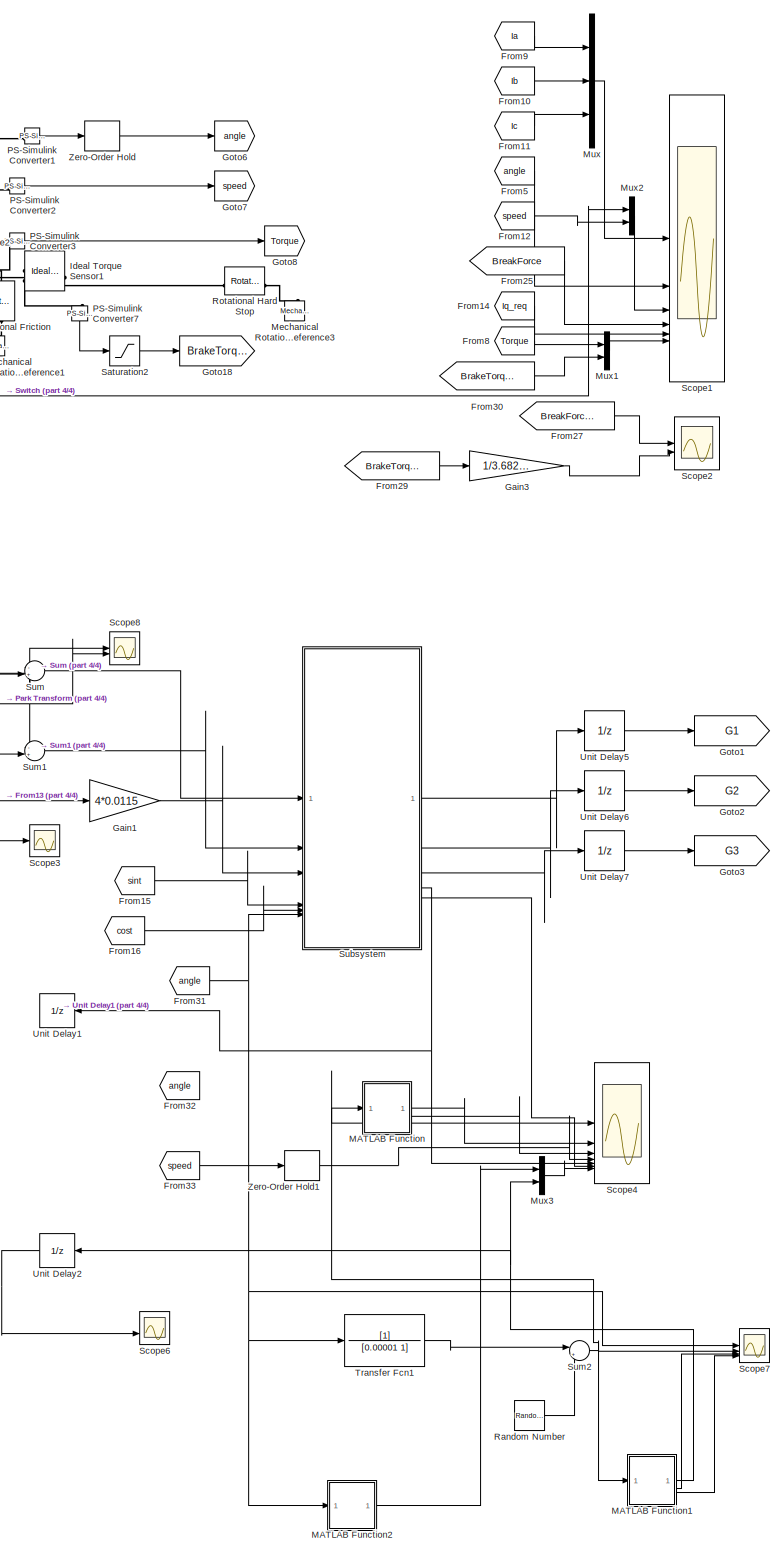
[diagram: root canvas - part 1/4, right side, full height]
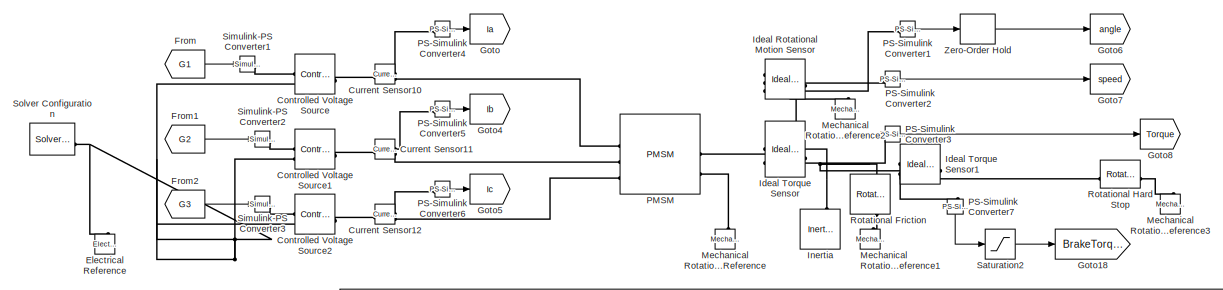
[diagram: root canvas - part 2/4, top center region]
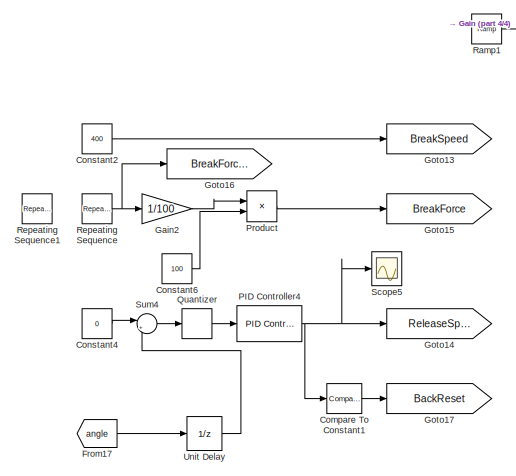
[diagram: root canvas - part 3/4, middle left region]
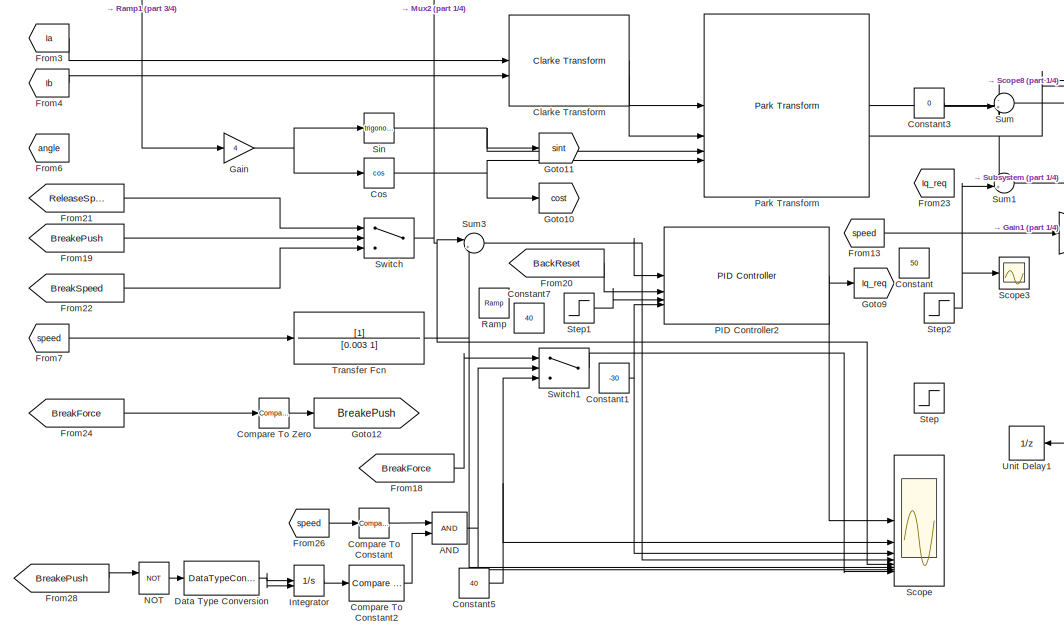
[diagram: root canvas - part 4/4, central region]
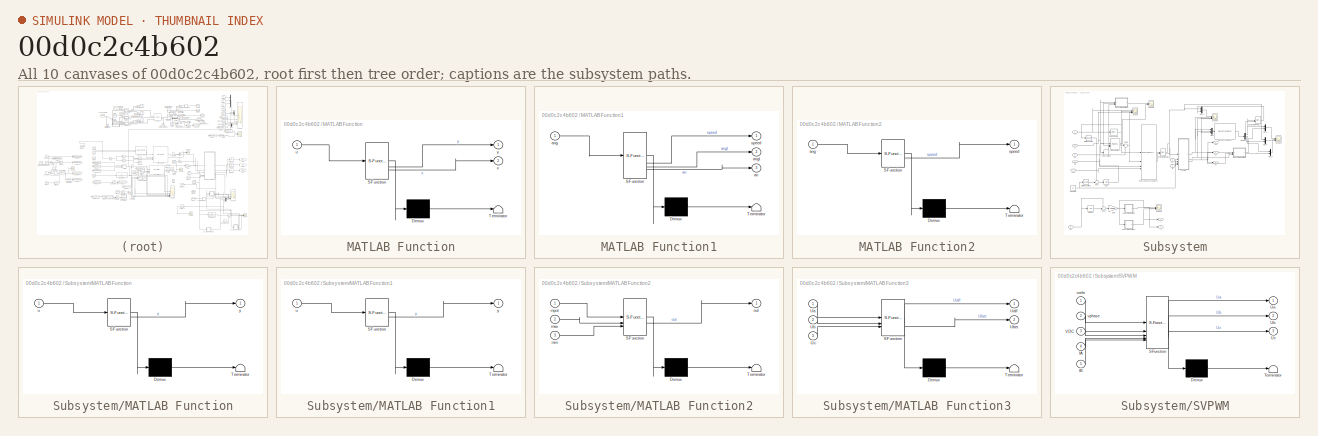
[diagram: thumbnail index - all 10 canvases of the model, root first then tree order]
MODEL slx_00d0c2c4b602
KIND model
CONFIG AbsTol = auto
CONFIG EnableMultiTasking = off
CONFIG FixedStep = auto
CONFIG MaxStep = 1e-6
CONFIG MinStep = auto
CONFIG RelTol = 1e-3
CONFIG SampleTimeConstraint = Unconstrained
CONFIG SolverName = daessc
CONFIG StartTime = 0.0
CONFIG StopTime = 3.3
BLOCK [Logic] AND
  AllPortsSameDT = off
  IconShape = distinctive
  OutDataTypeStr = boolean
BLOCK [Reference] Clarke Transform  REF=mcbcontrolslib/Clarke Transform
  LibrarySourceBlock = mcbhdllib/Controls/Math Transforms/Clarke Transform
  SourceBlock = mcbcontrolslib/Clarke Transform
  SourceType = Clarke Transform
BLOCK [Reference] Compare To Constant  REF=simulink/Logic and Bit
Operations/Compare
To Constant
  SourceBlock = simulink/Logic and Bit\nOperations/Compare\nTo Constant
  SourceType = Compare To Constant
BLOCK [Reference] Compare To Constant1  REF=simulink/Logic and Bit
Operations/Compare
To Constant
  SourceBlock = simulink/Logic and Bit\nOperations/Compare\nTo Constant
  SourceType = Compare To Constant
BLOCK [Reference] Compare To Constant2  REF=simulink/Logic and Bit
Operations/Compare
To Constant
  SourceBlock = simulink/Logic and Bit\nOperations/Compare\nTo Constant
  SourceType = Compare To Constant
BLOCK [Reference] Compare To Zero  REF=simulink/Logic and Bit
Operations/Compare
To Zero
  SourceBlock = simulink/Logic and Bit\nOperations/Compare\nTo Zero
  SourceType = Compare To Zero
BLOCK [Constant] Constant
  Value = 50
BLOCK [Constant] Constant1
  Value = -30
BLOCK [Constant] Constant2
  Value = 400
BLOCK [Constant] Constant3
  Value = 0
BLOCK [Constant] Constant4
  Value = 0
BLOCK [Constant] Constant5
  Value = 40
BLOCK [Constant] Constant6
  Value = 100
BLOCK [Constant] Constant7
  Value = 40
BLOCK [Reference] Controlled Voltage Source  REF=fl_lib/Electrical/Electrical Sources/Controlled Voltage
Source
  SourceBlock = fl_lib/Electrical/Electrical Sources/Controlled Voltage\nSource
  SourceType = Controlled Voltage\nSource
BLOCK [Reference] Controlled Voltage Source1  REF=fl_lib/Electrical/Electrical Sources/Controlled Voltage
Source
  SourceBlock = fl_lib/Electrical/Electrical Sources/Controlled Voltage\nSource
  SourceType = Controlled Voltage\nSource
BLOCK [Reference] Controlled Voltage Source2  REF=fl_lib/Electrical/Electrical Sources/Controlled Voltage
Source
  SourceBlock = fl_lib/Electrical/Electrical Sources/Controlled Voltage\nSource
  SourceType = Controlled Voltage\nSource
BLOCK [Trigonometry] Cos
  Operator = cos
BLOCK [Reference] Current Sensor10  REF=fl_lib/Electrical/Electrical Sensors/Current Sensor
  LibrarySourceBlock = ee_lib/Sensors &\nTransducers/Current Sensor
  SourceBlock = fl_lib/Electrical/Electrical Sensors/Current Sensor
  SourceType = Current Sensor
BLOCK [Reference] Current Sensor11  REF=fl_lib/Electrical/Electrical Sensors/Current Sensor
  LibrarySourceBlock = ee_lib/Sensors &\nTransducers/Current Sensor
  SourceBlock = fl_lib/Electrical/Electrical Sensors/Current Sensor
  SourceType = Current Sensor
BLOCK [Reference] Current Sensor12  REF=fl_lib/Electrical/Electrical Sensors/Current Sensor
  LibrarySourceBlock = ee_lib/Sensors &\nTransducers/Current Sensor
  SourceBlock = fl_lib/Electrical/Electrical Sensors/Current Sensor
  SourceType = Current Sensor
BLOCK [DataTypeConversion] Data Type Conversion
  OutDataTypeStr = double
  RndMeth = Floor
  SaturateOnIntegerOverflow = off
BLOCK [Reference] Electrical Reference  REF=fl_lib/Electrical/Electrical Elements/Electrical Reference
  LibrarySourceBlock = ee_lib/Connectors &\nReferences/Electrical Reference
  NameLocation = right
  SourceBlock = fl_lib/Electrical/Electrical Elements/Electrical Reference
  SourceType = Electrical Reference
BLOCK [From] From
  GotoTag = G1
BLOCK [From] From1
  GotoTag = G2
BLOCK [From] From10
  GotoTag = Ib
BLOCK [From] From11
  GotoTag = Ic
BLOCK [From] From12
  GotoTag = speed
BLOCK [From] From13
  GotoTag = speed
BLOCK [From] From14
  GotoTag = Iq_req
BLOCK [From] From15
  GotoTag = sint
BLOCK [From] From16
  GotoTag = cost
BLOCK [From] From17
  GotoTag = angle
BLOCK [From] From18
  GotoTag = BreakForce
BLOCK [From] From19
  GotoTag = BreakePush
BLOCK [From] From2
  GotoTag = G3
BLOCK [From] From20
  GotoTag = BackReset
BLOCK [From] From21
  GotoTag = ReleaseSpeed
BLOCK [From] From22
  GotoTag = BreakSpeed
BLOCK [From] From23
  GotoTag = Iq_req
BLOCK [From] From24
  GotoTag = BreakForce
BLOCK [From] From25
  GotoTag = BreakForce
BLOCK [From] From26
  GotoTag = speed
BLOCK [From] From27
  GotoTag = BreakForcePc
BLOCK [From] From28
  GotoTag = BreakePush
BLOCK [From] From29
  GotoTag = BrakeTorque
BLOCK [From] From3
  GotoTag = Ia
BLOCK [From] From30
  GotoTag = BrakeTorque
BLOCK [From] From31
  GotoTag = angle
BLOCK [From] From32
  GotoTag = angle
BLOCK [From] From33
  GotoTag = speed
BLOCK [From] From4
  GotoTag = Ib
BLOCK [From] From5
  GotoTag = angle
BLOCK [From] From6
  GotoTag = angle
BLOCK [From] From7
  GotoTag = speed
BLOCK [From] From8
  GotoTag = Torque
BLOCK [From] From9
  GotoTag = Ia
BLOCK [Gain] Gain
  Gain = 4
BLOCK [Gain] Gain1
  Gain = 4*0.0115
  NameLocation = top
BLOCK [Gain] Gain2
  Gain = 1/100
BLOCK [Gain] Gain3
  Gain = 1/3.682*100
BLOCK [Goto] Goto
  GotoTag = Ia
BLOCK [Goto] Goto1
  GotoTag = G1
BLOCK [Goto] Goto10
  GotoTag = cost
BLOCK [Goto] Goto11
  GotoTag = sint
BLOCK [Goto] Goto12
  GotoTag = BreakePush
BLOCK [Goto] Goto13
  GotoTag = BreakSpeed
BLOCK [Goto] Goto14
  GotoTag = ReleaseSpeed
BLOCK [Goto] Goto15
  GotoTag = BreakForce
BLOCK [Goto] Goto16
  GotoTag = BreakForcePc
BLOCK [Goto] Goto17
  GotoTag = BackReset
BLOCK [Goto] Goto18
  GotoTag = BrakeTorque
BLOCK [Goto] Goto2
  GotoTag = G2
BLOCK [Goto] Goto3
  GotoTag = G3
BLOCK [Goto] Goto4
  GotoTag = Ib
BLOCK [Goto] Goto5
  GotoTag = Ic
BLOCK [Goto] Goto6
  GotoTag = angle
BLOCK [Goto] Goto7
  GotoTag = speed
BLOCK [Goto] Goto8
  GotoTag = Torque
BLOCK [Goto] Goto9
  GotoTag = Iq_req
BLOCK [Reference] Ideal Rotational Motion Sensor  REF=fl_lib/Mechanical/Mechanical Sensors/Ideal Rotational
Motion Sensor
  NameLocation = top
  SourceBlock = fl_lib/Mechanical/Mechanical Sensors/Ideal Rotational\nMotion Sensor
  SourceType = Ideal Rotational\nMotion Sensor
BLOCK [Reference] Ideal Torque Sensor  REF=fl_lib/Mechanical/Mechanical Sensors/Ideal Torque Sensor
  NameLocation = top
  SourceBlock = fl_lib/Mechanical/Mechanical Sensors/Ideal Torque Sensor
  SourceType = Ideal Torque Sensor
BLOCK [Reference] Ideal Torque Sensor1  REF=fl_lib/Mechanical/Mechanical Sensors/Ideal Torque Sensor
  NameLocation = top
  SourceBlock = fl_lib/Mechanical/Mechanical Sensors/Ideal Torque Sensor
  SourceType = Ideal Torque Sensor
BLOCK [Reference] Inertia  REF=fl_lib/Mechanical/Rotational Elements/Inertia
  NameLocation = right
  SourceBlock = fl_lib/Mechanical/Rotational Elements/Inertia
  SourceType = Inertia
BLOCK [Integrator] Integrator
  ExternalReset = rising
BLOCK [SubSystem] MATLAB Function
  ErrorFcn = Stateflow.Translate.translate
  PermitHierarchicalResolution = ExplicitOnly
  SFBlockType = MATLAB Function
  SystemSampleTime = 500e-6
  TreatAsAtomicUnit = on
BLOCK [Demux] MATLAB Function/ Demux 
  Outputs = 1
BLOCK [S-Function] MATLAB Function/ SFunction 
  EnableBusSupport = on
  FunctionName = sf_sfun
  PortCounts = [1 3]
  SFcnIsStateOwnerBlock = off
  SFunctionDeploymentMode = off
  Tag = Stateflow S-Function 4
BLOCK [Terminator] MATLAB Function/ Terminator 
BLOCK [Inport] MATLAB Function/u
BLOCK [Outport] MATLAB Function/x
  Port = 2
BLOCK [Outport] MATLAB Function/y
BLOCK [SubSystem] MATLAB Function1
  ErrorFcn = Stateflow.Translate.translate
  PermitHierarchicalResolution = ExplicitOnly
  SFBlockType = MATLAB Function
  SystemSampleTime = 1/100000
  TreatAsAtomicUnit = on
BLOCK [Demux] MATLAB Function1/ Demux 
  Outputs = 1
BLOCK [S-Function] MATLAB Function1/ SFunction 
  EnableBusSupport = on
  FunctionName = sf_sfun
  PortCounts = [1 4]
  SFcnIsStateOwnerBlock = off
  SFunctionDeploymentMode = off
  Tag = Stateflow S-Function 6
BLOCK [Terminator] MATLAB Function1/ Terminator 
BLOCK [Outport] MATLAB Function1/an
  Port = 3
BLOCK [Inport] MATLAB Function1/ang
BLOCK [Outport] MATLAB Function1/angl
  Port = 2
BLOCK [Outport] MATLAB Function1/speed
BLOCK [SubSystem] MATLAB Function2
  ErrorFcn = Stateflow.Translate.translate
  PermitHierarchicalResolution = ExplicitOnly
  SFBlockType = MATLAB Function
  SystemSampleTime = 1/100000
  TreatAsAtomicUnit = on
BLOCK [Demux] MATLAB Function2/ Demux 
  Outputs = 1
BLOCK [S-Function] MATLAB Function2/ SFunction 
  EnableBusSupport = on
  FunctionName = sf_sfun
  PortCounts = [1 2]
  SFcnIsStateOwnerBlock = off
  SFunctionDeploymentMode = off
  Tag = Stateflow S-Function 5
BLOCK [Terminator] MATLAB Function2/ Terminator 
BLOCK [Inport] MATLAB Function2/ang
BLOCK [Outport] MATLAB Function2/speed
BLOCK [Reference] Mechanical Rotational Reference  REF=fl_lib/Mechanical/Rotational Elements/Mechanical
Rotational Reference
  NameLocation = right
  SourceBlock = fl_lib/Mechanical/Rotational Elements/Mechanical\nRotational Reference
  SourceType = Mechanical\nRotational Reference
BLOCK [Reference] Mechanical Rotational Reference1  REF=fl_lib/Mechanical/Rotational Elements/Mechanical
Rotational Reference
  NameLocation = right
  SourceBlock = fl_lib/Mechanical/Rotational Elements/Mechanical\nRotational Reference
  SourceType = Mechanical\nRotational Reference
BLOCK [Reference] Mechanical Rotational Reference2  REF=fl_lib/Mechanical/Rotational Elements/Mechanical
Rotational Reference
  NameLocation = right
  SourceBlock = fl_lib/Mechanical/Rotational Elements/Mechanical\nRotational Reference
  SourceType = Mechanical\nRotational Reference
BLOCK [Reference] Mechanical Rotational Reference3  REF=fl_lib/Mechanical/Rotational Elements/Mechanical
Rotational Reference
  NameLocation = right
  SourceBlock = fl_lib/Mechanical/Rotational Elements/Mechanical\nRotational Reference
  SourceType = Mechanical\nRotational Reference
BLOCK [Mux] Mux
  DisplayOption = bar
  Inputs = 3
BLOCK [Mux] Mux1
  DisplayOption = bar
  Inputs = 2
BLOCK [Mux] Mux2
  DisplayOption = bar
  Inputs = 2
BLOCK [Mux] Mux3
  DisplayOption = bar
  Inputs = 2
BLOCK [Logic] NOT
  AllPortsSameDT = off
  IconShape = distinctive
  Operator = NOT
  OutDataTypeStr = boolean
BLOCK [Reference] PID Controller2  REF=slpidlib/PID Controller
  LibrarySourceBlock = simulink/Continuous/PID Controller
  SourceBlock = slpidlib/PID Controller
  SourceType = PID 1dof
BLOCK [Reference] PID Controller4  REF=slpidlib/PID Controller
  LibrarySourceBlock = simulink/Continuous/PID Controller
  SourceBlock = slpidlib/PID Controller
  SourceType = PID 1dof
BLOCK [Reference] PMSM  REF=ee_lib/Electromechanical/Permanent Magnet/PMSM
  NameLocation = top
  SourceBlock = ee_lib/Electromechanical/Permanent Magnet/PMSM
  SourceType = PMSM
BLOCK [Reference] PS-Simulink Converter1  REF=nesl_utility/PS-Simulink
Converter
  SourceBlock = nesl_utility/PS-Simulink\nConverter
  SourceType = PS-Simulink\nConverter
BLOCK [Reference] PS-Simulink Converter2  REF=nesl_utility/PS-Simulink
Converter
  SourceBlock = nesl_utility/PS-Simulink\nConverter
  SourceType = PS-Simulink\nConverter
BLOCK [Reference] PS-Simulink Converter3  REF=nesl_utility/PS-Simulink
Converter
  SourceBlock = nesl_utility/PS-Simulink\nConverter
  SourceType = PS-Simulink\nConverter
BLOCK [Reference] PS-Simulink Converter4  REF=nesl_utility/PS-Simulink
Converter
  SourceBlock = nesl_utility/PS-Simulink\nConverter
  SourceType = PS-Simulink\nConverter
BLOCK [Reference] PS-Simulink Converter5  REF=nesl_utility/PS-Simulink
Converter
  SourceBlock = nesl_utility/PS-Simulink\nConverter
  SourceType = PS-Simulink\nConverter
BLOCK [Reference] PS-Simulink Converter6  REF=nesl_utility/PS-Simulink
Converter
  SourceBlock = nesl_utility/PS-Simulink\nConverter
  SourceType = PS-Simulink\nConverter
BLOCK [Reference] PS-Simulink Converter7  REF=nesl_utility/PS-Simulink
Converter
  NameLocation = left
  SourceBlock = nesl_utility/PS-Simulink\nConverter
  SourceType = PS-Simulink\nConverter
BLOCK [Reference] Park Transform  REF=mcbcontrolslib/Park Transform
  LibrarySourceBlock = mcbhdllib/Controls/Math Transforms/Park Transform
  SourceBlock = mcbcontrolslib/Park Transform
  SourceType = Park Transform
BLOCK [Product] Product
BLOCK [Quantizer] Quantizer
  QuantizationInterval = 0.1
BLOCK [Reference] Ramp  REF=simulink/Sources/Ramp
  SourceBlock = simulink/Sources/Ramp
  SourceType = Ramp
BLOCK [Reference] Ramp1  REF=simulink/Sources/Ramp
  SourceBlock = simulink/Sources/Ramp
  SourceType = Ramp
BLOCK [RandomNumber] Random Number
  SampleTime = 1e-6
  Seed = 0.0001
  Variance = 0.0001
BLOCK [Reference] Repeating Sequence  REF=simulink/Sources/Repeating
Sequence
  SourceBlock = simulink/Sources/Repeating\nSequence
  SourceType = Repeating table
BLOCK [Reference] Repeating Sequence1  REF=simulink/Sources/Repeating
Sequence
  SourceBlock = simulink/Sources/Repeating\nSequence
  SourceType = Repeating table
BLOCK [Reference] Rotational Friction  REF=fl_lib/Mechanical/Rotational Elements/Rotational Friction
  NameLocation = left
  SourceBlock = fl_lib/Mechanical/Rotational Elements/Rotational Friction
  SourceType = Rotational Friction
BLOCK [Reference] Rotational Hard Stop  REF=fl_lib/Mechanical/Rotational Elements/Rotational Hard Stop
  SourceBlock = fl_lib/Mechanical/Rotational Elements/Rotational Hard Stop
  SourceType = Rotational Hard Stop
BLOCK [Saturate] Saturation2
  LowerLimit = 0
  UpperLimit = 5
BLOCK [Scope] Scope
  Floating = off
  NumInputPorts = 8
  ScopeSpecificationString = Simulink.scopes.TimeScopeBlockCfg('CurrentConfiguration', extmgr.ConfigurationSet(extmgr.Configuration('Core','General UI',true),extmgr.Configuration('Core','Source UI',true),extmgr.Configuration('Sources','WiredSimulink',true,'DataLoggingVariableName','ScopeData1'),extmgr.Configuration('Visuals','Time Domain',true,'SerializedDisplays',{struct('MinYLimReal','-46.25','MaxYLimReal','116.25','YLabelR...<+7085ch>
BLOCK [Scope] Scope1
  Floating = off
  NumInputPorts = 6
  ScopeSpecificationString = Simulink.scopes.TimeScopeBlockCfg('CurrentConfiguration', extmgr.ConfigurationSet(extmgr.Configuration('Core','General UI',true),extmgr.Configuration('Core','Source UI',true),extmgr.Configuration('Sources','WiredSimulink',true,'DataLoggingVariableName','ScopeData1'),extmgr.Configuration('Visuals','Time Domain',true,'SerializedDisplays',{struct('MinYLimReal','-93.85455','MaxYLimReal','94.6609','YLa...<+6537ch>
BLOCK [Scope] Scope2
  Floating = off
  NumInputPorts = 2
  ScopeSpecificationString = Simulink.scopes.TimeScopeBlockCfg('CurrentConfiguration', extmgr.ConfigurationSet(extmgr.Configuration('Core','General UI',true),extmgr.Configuration('Core','Source UI',true),extmgr.Configuration('Sources','WiredSimulink',true,'DataLoggingVariableName','ScopeData1'),extmgr.Configuration('Visuals','Time Domain',true,'SerializedDisplays',{struct('MinYLimReal','-16.97447','MaxYLimReal','152.77023','Y...<+1770ch>
BLOCK [Scope] Scope3
  Floating = off
  NumInputPorts = 1
  ScopeSpecificationString = Simulink.scopes.TimeScopeBlockCfg('CurrentConfiguration', extmgr.ConfigurationSet(extmgr.Configuration('Core','General UI',true),extmgr.Configuration('Core','Source UI',true),extmgr.Configuration('Sources','WiredSimulink',true,'DataLoggingVariableName','ScopeData2'),extmgr.Configuration('Visuals','Time Domain',true,'SerializedDisplays',{struct('MinYLimReal','-46.25','MaxYLimReal','116.25','YLabelR...<+1579ch>
BLOCK [Scope] Scope4
  Floating = off
  NumInputPorts = 8
  ScopeSpecificationString = Simulink.scopes.TimeScopeBlockCfg('CurrentConfiguration', extmgr.ConfigurationSet(extmgr.Configuration('Core','General UI',true),extmgr.Configuration('Core','Source UI',true),extmgr.Configuration('Sources','WiredSimulink',true,'DataLoggingVariableName','ScopeData4'),extmgr.Configuration('Visuals','Time Domain',true,'SerializedDisplays',{struct('MinYLimReal','-7.12346','MaxYLimReal','63.82388','YLa...<+7337ch>
BLOCK [Scope] Scope5
  Floating = off
  NumInputPorts = 3
  ScopeSpecificationString = Simulink.scopes.TimeScopeBlockCfg('CurrentConfiguration', extmgr.ConfigurationSet(extmgr.Configuration('Core','General UI',true),extmgr.Configuration('Core','Source UI',true),extmgr.Configuration('Sources','WiredSimulink',true,'DataLoggingVariableName','ScopeData4'),extmgr.Configuration('Visuals','Time Domain',true,'SerializedDisplays',{struct('MinYLimReal','-1.00000','MaxYLimReal','1.00000','YLab...<+1565ch>
BLOCK [Scope] Scope6
  Floating = off
  NumInputPorts = 2
  ScopeSpecificationString = Simulink.scopes.TimeScopeBlockCfg('CurrentConfiguration', extmgr.ConfigurationSet(extmgr.Configuration('Core','General UI',true),extmgr.Configuration('Core','Source UI',true),extmgr.Configuration('Sources','WiredSimulink',true,'DataLoggingVariableName','ScopeData5'),extmgr.Configuration('Visuals','Time Domain',true,'SerializedDisplays',{struct('MinYLimReal','-251.85783','MaxYLimReal','630.45847','...<+1612ch>
BLOCK [Scope] Scope7
  Floating = off
  NumInputPorts = 4
  ScopeSpecificationString = Simulink.scopes.TimeScopeBlockCfg('CurrentConfiguration', extmgr.ConfigurationSet(extmgr.Configuration('Core','General UI',true),extmgr.Configuration('Core','Source UI',true),extmgr.Configuration('Sources','WiredSimulink',true,'DataLoggingVariableName','ScopeData6'),extmgr.Configuration('Visuals','Time Domain',true,'SerializedDisplays',{struct('MinYLimReal','29.70314','MaxYLimReal','31.13925','YLa...<+1980ch>
BLOCK [Scope] Scope8
  Floating = off
  NumInputPorts = 2
  ScopeSpecificationString = Simulink.scopes.TimeScopeBlockCfg('CurrentConfiguration', extmgr.ConfigurationSet(extmgr.Configuration('Core','General UI',true),extmgr.Configuration('Core','Source UI',true),extmgr.Configuration('Sources','WiredSimulink',true,'DataLoggingVariableName','ScopeData1'),extmgr.Configuration('Visuals','Time Domain',true,'SerializedDisplays',{struct('MinYLimReal','-17.4223','MaxYLimReal','89.33518','YLa...<+1540ch>
BLOCK [Reference] Simulink-PS Converter1  REF=nesl_utility/Simulink-PS
Converter
  NameLocation = right
  SourceBlock = nesl_utility/Simulink-PS\nConverter
  SourceType = Simulink-PS\nConverter
BLOCK [Reference] Simulink-PS Converter2  REF=nesl_utility/Simulink-PS
Converter
  SourceBlock = nesl_utility/Simulink-PS\nConverter
  SourceType = Simulink-PS\nConverter
BLOCK [Reference] Simulink-PS Converter3  REF=nesl_utility/Simulink-PS
Converter
  SourceBlock = nesl_utility/Simulink-PS\nConverter
  SourceType = Simulink-PS\nConverter
BLOCK [Trigonometry] Sin
BLOCK [Reference] Solver Configuration  REF=nesl_utility/Solver
Configuration
  SourceBlock = nesl_utility/Solver\nConfiguration
  SourceType = Solver\nConfiguration
BLOCK [Step] Step
  After = 40
  Before = 10
  SampleTime = 0
  Time = 0.02
BLOCK [Step] Step1
  After = 100
  Before = 50
  SampleTime = 0
  Time = 0.25
BLOCK [Step] Step2
  After = 75
  SampleTime = 0
  Time = 0.01
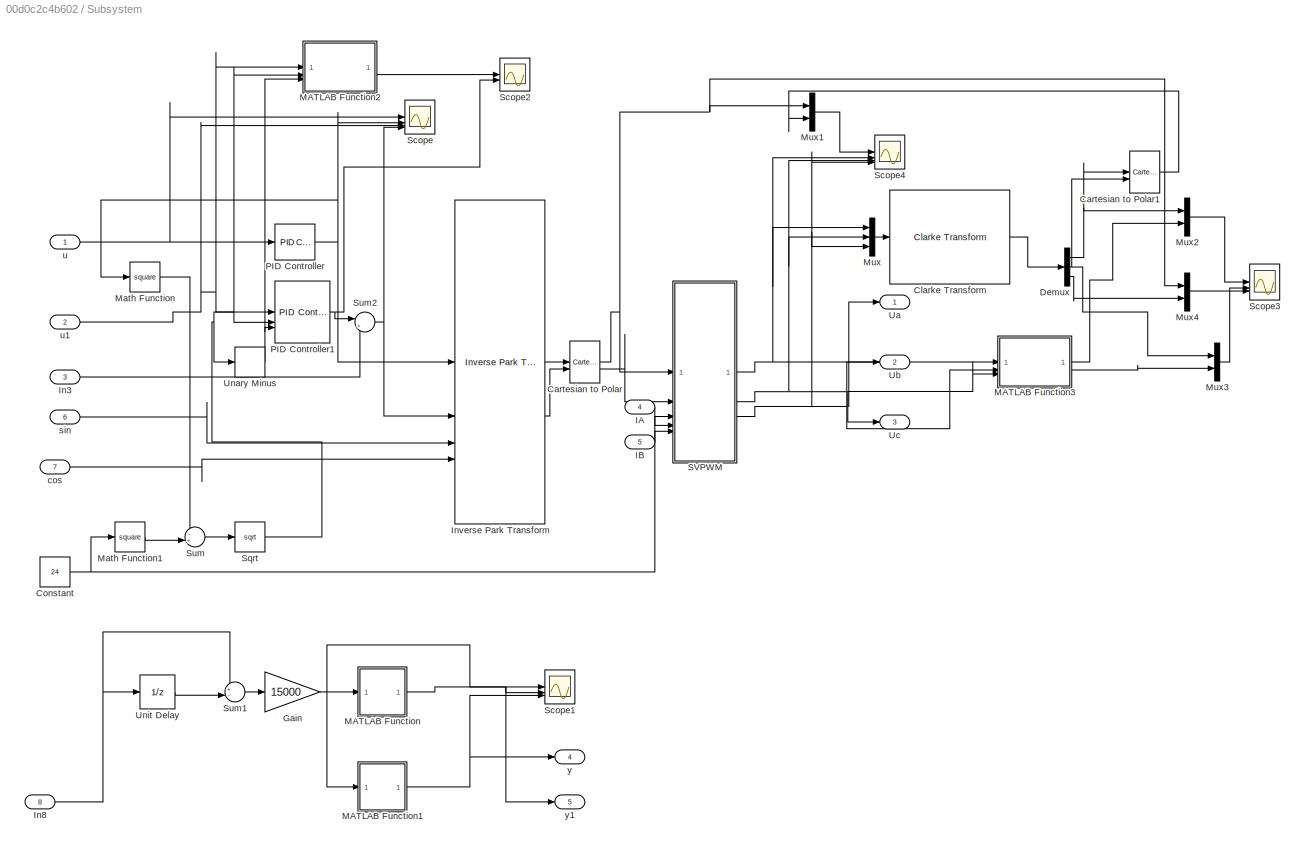
BLOCK [SubSystem] Subsystem
  SystemSampleTime = 1/15000
  TreatAsAtomicUnit = on
BLOCK [Reference] Subsystem/Cartesian to Polar  REF=simulink_extras/Transformations/Cartesian to
Polar
  SourceBlock = simulink_extras/Transformations/Cartesian to\nPolar
  SourceType = Cart2Polar
BLOCK [Reference] Subsystem/Cartesian to Polar1  REF=simulink_extras/Transformations/Cartesian to
Polar
  SourceBlock = simulink_extras/Transformations/Cartesian to\nPolar
  SourceType = Cart2Polar
BLOCK [Reference] Subsystem/Clarke Transform  REF=mcbcontrolslib/Clarke Transform
  LibrarySourceBlock = mcbhdllib/Controls/Math Transforms/Clarke Transform
  SourceBlock = mcbcontrolslib/Clarke Transform
  SourceType = Clarke Transform
BLOCK [Constant] Subsystem/Constant
  Value = 24
BLOCK [Demux] Subsystem/Demux
  Outputs = 3
BLOCK [Gain] Subsystem/Gain
  Gain = 15000
BLOCK [Inport] Subsystem/IA
  Port = 4
BLOCK [Inport] Subsystem/IB
  Port = 5
BLOCK [Inport] Subsystem/In3
  Port = 3
BLOCK [Inport] Subsystem/In8
  Port = 8
BLOCK [Reference] Subsystem/Inverse Park Transform  REF=mcbcontrolslib/Inverse Park Transform
  LibrarySourceBlock = mcbhdllib/Controls/Math Transforms/Inverse Park Transform
  SourceBlock = mcbcontrolslib/Inverse Park Transform
  SourceType = Inverse Park Transform
BLOCK [SubSystem] Subsystem/MATLAB Function
  ErrorFcn = Stateflow.Translate.translate
  PermitHierarchicalResolution = ExplicitOnly
  SFBlockType = MATLAB Function
  TreatAsAtomicUnit = on
BLOCK [Demux] Subsystem/MATLAB Function/ Demux 
  Outputs = 1
BLOCK [S-Function] Subsystem/MATLAB Function/ SFunction 
  EnableBusSupport = on
  FunctionName = sf_sfun
  PortCounts = [1 2]
  SFcnIsStateOwnerBlock = off
  SFunctionDeploymentMode = off
  Tag = Stateflow S-Function 2
BLOCK [Terminator] Subsystem/MATLAB Function/ Terminator 
BLOCK [Inport] Subsystem/MATLAB Function/u
BLOCK [Outport] Subsystem/MATLAB Function/y
BLOCK [SubSystem] Subsystem/MATLAB Function1
  ErrorFcn = Stateflow.Translate.translate
  PermitHierarchicalResolution = ExplicitOnly
  SFBlockType = MATLAB Function
  TreatAsAtomicUnit = on
BLOCK [Demux] Subsystem/MATLAB Function1/ Demux 
  Outputs = 1
BLOCK [S-Function] Subsystem/MATLAB Function1/ SFunction 
  EnableBusSupport = on
  FunctionName = sf_sfun
  PortCounts = [1 2]
  SFcnIsStateOwnerBlock = off
  SFunctionDeploymentMode = off
  Tag = Stateflow S-Function 3
BLOCK [Terminator] Subsystem/MATLAB Function1/ Terminator 
BLOCK [Inport] Subsystem/MATLAB Function1/u
BLOCK [Outport] Subsystem/MATLAB Function1/y
BLOCK [SubSystem] Subsystem/MATLAB Function2
  ErrorFcn = Stateflow.Translate.translate
  PermitHierarchicalResolution = ExplicitOnly
  SFBlockType = MATLAB Function
  TreatAsAtomicUnit = on
BLOCK [Demux] Subsystem/MATLAB Function2/ Demux 
  Outputs = 1
BLOCK [S-Function] Subsystem/MATLAB Function2/ SFunction 
  EnableBusSupport = on
  FunctionName = sf_sfun
  PortCounts = [3 2]
  SFcnIsStateOwnerBlock = off
  SFunctionDeploymentMode = off
  Tag = Stateflow S-Function 7
BLOCK [Terminator] Subsystem/MATLAB Function2/ Terminator 
BLOCK [Inport] Subsystem/MATLAB Function2/input
BLOCK [Inport] Subsystem/MATLAB Function2/max
  Port = 2
BLOCK [Inport] Subsystem/MATLAB Function2/min
  Port = 3
BLOCK [Outport] Subsystem/MATLAB Function2/out
BLOCK [SubSystem] Subsystem/MATLAB Function3
  ErrorFcn = Stateflow.Translate.translate
  PermitHierarchicalResolution = ExplicitOnly
  SFBlockType = MATLAB Function
  TreatAsAtomicUnit = on
BLOCK [Demux] Subsystem/MATLAB Function3/ Demux 
  Outputs = 1
BLOCK [S-Function] Subsystem/MATLAB Function3/ SFunction 
  EnableBusSupport = on
  FunctionName = sf_sfun
  PortCounts = [3 3]
  SFcnIsStateOwnerBlock = off
  SFunctionDeploymentMode = off
  Tag = Stateflow S-Function 8
BLOCK [Terminator] Subsystem/MATLAB Function3/ Terminator 
BLOCK [Inport] Subsystem/MATLAB Function3/Ua
BLOCK [Outport] Subsystem/MATLAB Function3/Ualf
BLOCK [Inport] Subsystem/MATLAB Function3/Ub
  Port = 2
BLOCK [Outport] Subsystem/MATLAB Function3/Ubet
  Port = 2
BLOCK [Inport] Subsystem/MATLAB Function3/Uc
  Port = 3
BLOCK [Math] Subsystem/Math Function
  Operator = square
BLOCK [Math] Subsystem/Math Function1
  Operator = square
BLOCK [Mux] Subsystem/Mux
  DisplayOption = bar
  Inputs = 3
BLOCK [Mux] Subsystem/Mux1
  DisplayOption = bar
  Inputs = 2
BLOCK [Mux] Subsystem/Mux2
  DisplayOption = bar
  Inputs = 2
BLOCK [Mux] Subsystem/Mux3
  DisplayOption = bar
  Inputs = 2
BLOCK [Mux] Subsystem/Mux4
  DisplayOption = bar
  Inputs = 2
BLOCK [Reference] Subsystem/PID Controller  REF=slpidlib/PID Controller
  LibrarySourceBlock = simulink/Continuous/PID Controller
  SourceBlock = slpidlib/PID Controller
  SourceType = PID 1dof
BLOCK [Reference] Subsystem/PID Controller1  REF=slpidlib/PID Controller
  LibrarySourceBlock = simulink/Continuous/PID Controller
  SourceBlock = slpidlib/PID Controller
  SourceType = PID 1dof
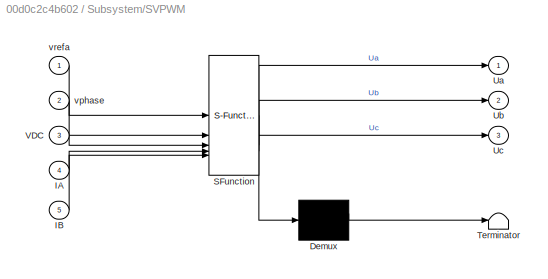
BLOCK [SubSystem] Subsystem/SVPWM
  ErrorFcn = Stateflow.Translate.translate
  PermitHierarchicalResolution = ExplicitOnly
  SFBlockType = MATLAB Function
  TreatAsAtomicUnit = on
BLOCK [Demux] Subsystem/SVPWM/ Demux 
  Outputs = 1
BLOCK [S-Function] Subsystem/SVPWM/ SFunction 
  EnableBusSupport = on
  FunctionName = sf_sfun
  PortCounts = [5 4]
  SFcnIsStateOwnerBlock = off
  SFunctionDeploymentMode = off
  Tag = Stateflow S-Function 1
BLOCK [Terminator] Subsystem/SVPWM/ Terminator 
BLOCK [Inport] Subsystem/SVPWM/IA
  Port = 4
BLOCK [Inport] Subsystem/SVPWM/IB
  Port = 5
BLOCK [Outport] Subsystem/SVPWM/Ua
  VectorParamsAs1DForOutWhenUnconnected = off
BLOCK [Outport] Subsystem/SVPWM/Ub
  Port = 2
BLOCK [Outport] Subsystem/SVPWM/Uc
  Port = 3
BLOCK [Inport] Subsystem/SVPWM/VDC
  Port = 3
BLOCK [Inport] Subsystem/SVPWM/vphase
  Port = 2
BLOCK [Inport] Subsystem/SVPWM/vrefa
BLOCK [Scope] Subsystem/Scope
  Floating = off
  NumInputPorts = 4
  ScopeSpecificationString = Simulink.scopes.TimeScopeBlockCfg('CurrentConfiguration', extmgr.ConfigurationSet(extmgr.Configuration('Core','General UI',true),extmgr.Configuration('Core','Source UI',true),extmgr.Configuration('Sources','WiredSimulink',true,'DataLoggingVariableName','ScopeData1'),extmgr.Configuration('Visuals','Time Domain',true,'SerializedDisplays',{struct('MinYLimReal','-21.12667','MaxYLimReal','24.10192','YL...<+3907ch>
BLOCK [Scope] Subsystem/Scope1
  Floating = off
  NumInputPorts = 3
  ScopeSpecificationString = Simulink.scopes.TimeScopeBlockCfg('CurrentConfiguration', extmgr.ConfigurationSet(extmgr.Configuration('Core','General UI',true),extmgr.Configuration('Core','Source UI',true),extmgr.Configuration('Sources','WiredSimulink',true,'DataLoggingVariableName','ScopeData3'),extmgr.Configuration('Visuals','Time Domain',true,'SerializedDisplays',{struct('MinYLimReal','-176.01814','MaxYLimReal','1584.16325',...<+2355ch>
BLOCK [Scope] Subsystem/Scope2
  Floating = off
  NumInputPorts = 2
  ScopeSpecificationString = Simulink.scopes.TimeScopeBlockCfg('CurrentConfiguration', extmgr.ConfigurationSet(extmgr.Configuration('Core','General UI',true),extmgr.Configuration('Core','Source UI',true),extmgr.Configuration('Sources','WiredSimulink',true,'DataLoggingVariableName','ScopeData2'),extmgr.Configuration('Visuals','Time Domain',true,'SerializedDisplays',{struct('MinYLimReal','2.76706','MaxYLimReal','3.68055','YLabe...<+1606ch>
BLOCK [Scope] Subsystem/Scope3
  Floating = off
  NumInputPorts = 3
  ScopeSpecificationString = Simulink.scopes.TimeScopeBlockCfg('CurrentConfiguration', extmgr.ConfigurationSet(extmgr.Configuration('Core','General UI',true),extmgr.Configuration('Core','Source UI',true),extmgr.Configuration('Sources','WiredSimulink',true,'DataLoggingVariableName','ScopeData4'),extmgr.Configuration('Visuals','Time Domain',true,'SerializedDisplays',{struct('MinYLimReal','-8.23434','MaxYLimReal','3.70865','YLab...<+3183ch>
BLOCK [Scope] Subsystem/Scope4
  Floating = off
  NumInputPorts = 4
  ScopeSpecificationString = Simulink.scopes.TimeScopeBlockCfg('CurrentConfiguration', extmgr.ConfigurationSet(extmgr.Configuration('Core','General UI',true),extmgr.Configuration('Core','Source UI',true),extmgr.Configuration('Sources','WiredSimulink',true,'DataLoggingVariableName','ScopeData3'),extmgr.Configuration('Visuals','Time Domain',true,'SerializedDisplays',{struct('MinYLimReal','-2.34375','MaxYLimReal','21.09375','YLa...<+3912ch>
BLOCK [Sqrt] Subsystem/Sqrt
BLOCK [Sum] Subsystem/Sum
  Inputs = -+|
BLOCK [Sum] Subsystem/Sum1
  Inputs = +-|
BLOCK [Sum] Subsystem/Sum2
  Inputs = |++
BLOCK [Outport] Subsystem/Ua
BLOCK [Outport] Subsystem/Ub
  Port = 2
BLOCK [Outport] Subsystem/Uc
  Port = 3
BLOCK [UnaryMinus] Subsystem/Unary Minus
BLOCK [UnitDelay] Subsystem/Unit Delay
  HasFrameUpgradeWarning = on
  SampleTime = -1
BLOCK [Inport] Subsystem/cos
  Port = 7
BLOCK [Inport] Subsystem/sin
  Port = 6
BLOCK [Inport] Subsystem/u
BLOCK [Inport] Subsystem/u1
  Port = 2
BLOCK [Outport] Subsystem/y
  Port = 4
BLOCK [Outport] Subsystem/y1
  Port = 5
BLOCK [Sum] Sum
  Inputs = -+|
BLOCK [Sum] Sum1
  Inputs = -+|
BLOCK [Sum] Sum2
  Inputs = |++
BLOCK [Sum] Sum3
  Inputs = |+-
BLOCK [Sum] Sum4
  Inputs = |+-
BLOCK [Switch] Switch
  Criteria = u2 > Threshold
  InputSameDT = off
  SaturateOnIntegerOverflow = off
BLOCK [Switch] Switch1
  Criteria = u2 > Threshold
  InputSameDT = off
  SaturateOnIntegerOverflow = off
BLOCK [TransferFcn] Transfer Fcn
  Denominator = [0.003 1]
BLOCK [TransferFcn] Transfer Fcn1
  Denominator = [0.00001 1]
BLOCK [UnitDelay] Unit Delay
  HasFrameUpgradeWarning = on
  SampleTime = 300e-6
BLOCK [UnitDelay] Unit Delay1
  HasFrameUpgradeWarning = on
  SampleTime = -1
BLOCK [UnitDelay] Unit Delay2
  HasFrameUpgradeWarning = on
  SampleTime = -1
BLOCK [UnitDelay] Unit Delay5
  HasFrameUpgradeWarning = on
  NameLocation = top
  SampleTime = 1e-6
BLOCK [UnitDelay] Unit Delay6
  HasFrameUpgradeWarning = on
  NameLocation = top
  SampleTime = 1e-6
BLOCK [UnitDelay] Unit Delay7
  HasFrameUpgradeWarning = on
  NameLocation = top
  SampleTime = 1e-6
BLOCK [ZeroOrderHold] Zero-Order Hold
  SampleTime = 3e-6
BLOCK [ZeroOrderHold] Zero-Order Hold1
  SampleTime = 300e-6
NET AND:1 -> Scope:7, Switch1:2
LINE Clarke Transform:1 -> Park Transform:1
LINE Clarke Transform:2 -> Park Transform:2
LINE Compare To Constant1:1 -> Goto17:1
LINE Compare To Constant2:1 -> AND:2
LINE Compare To Constant:1 -> AND:1
LINE Compare To Zero:1 -> Goto12:1
NET Constant1:1 -> PID Controller2:4, Scope:3
LINE Constant2:1 -> Goto13:1
LINE Constant3:1 -> Sum:2
LINE Constant4:1 -> Sum4:1
NET Constant5:1 -> Scope:2, Switch1:3
LINE Constant6:1 -> Product:2
NET Cos:1 -> Goto10:1, Park Transform:4
NET Data Type Conversion:1 -> Integrator:1, Integrator:2
LINE From10:1 -> Mux:2
LINE From11:1 -> Mux:3
LINE From12:1 -> Mux2:2
LINE From13:1 -> Gain1:1
LINE From14:1 -> Scope1:5
LINE From15:1 -> Subsystem:6
LINE From16:1 -> Subsystem:7
LINE From17:1 -> Unit Delay:1
LINE From18:1 -> Switch1:1
LINE From19:1 -> Switch:2
LINE From1:1 -> Simulink-PS Converter2:1
LINE From20:1 -> PID Controller2:2
LINE From21:1 -> Switch:1
LINE From22:1 -> Switch:3
LINE From24:1 -> Compare To Zero:1
LINE From25:1 -> Scope1:4
LINE From26:1 -> Compare To Constant:1
LINE From27:1 -> Scope2:1
LINE From28:1 -> NOT:1
LINE From29:1 -> Gain3:1
LINE From2:1 -> Simulink-PS Converter3:1
LINE From30:1 -> Mux1:2
NET From31:1 -> MATLAB Function2:1, Scope7:1, Subsystem:8, Transfer Fcn1:1
LINE From33:1 -> Zero-Order Hold1:1
LINE From3:1 -> Clarke Transform:1
LINE From4:1 -> Clarke Transform:2
LINE From5:1 -> Scope1:2
LINE From7:1 -> Transfer Fcn:1
LINE From8:1 -> Mux1:1
LINE From9:1 -> Mux:1
LINE From:1 -> Simulink-PS Converter1:1
LINE Gain1:1 -> Subsystem:3
LINE Gain2:1 -> Product:1
LINE Gain3:1 -> Scope2:2
NET Gain:1 -> Cos:1, Sin:1
LINE Integrator:1 -> Compare To Constant2:1
NET MATLAB Function1:1 -> Mux3:2, Unit Delay2:1
LINE MATLAB Function1:2 -> Scope7:3
LINE MATLAB Function1:3 -> Scope7:4
LINE MATLAB Function2:1 -> Mux3:1
LINE MATLAB Function:1 -> Scope4:2
LINE MATLAB Function:2 -> Scope4:3
LINE Mux1:1 -> Scope1:6
LINE Mux2:1 -> Scope1:3
LINE Mux3:1 -> Scope4:7
LINE Mux:1 -> Scope1:1
LINE NOT:1 -> Data Type Conversion:1
NET PID Controller2:1 -> Goto9:1, Scope:1
NET PID Controller4:1 -> Compare To Constant1:1, Goto14:1, Scope5:1
LINE PS-Simulink Converter1:1 -> Zero-Order Hold:1
LINE PS-Simulink Converter2:1 -> Goto7:1
LINE PS-Simulink Converter3:1 -> Goto8:1
LINE PS-Simulink Converter4:1 -> Goto:1
LINE PS-Simulink Converter5:1 -> Goto4:1
LINE PS-Simulink Converter6:1 -> Goto5:1
LINE PS-Simulink Converter7:1 -> Saturation2:1
NET Park Transform:1 -> Scope8:1, Sum:1
NET Park Transform:2 -> Scope8:2, Sum1:1
LINE Product:1 -> Goto15:1
LINE Quantizer:1 -> PID Controller4:1
LINE Ramp1:1 -> Gain:1
LINE Random Number:1 -> Sum2:2
NET Repeating Sequence:1 -> Gain2:1, Goto16:1
LINE Saturation2:1 -> Goto18:1
NET Sin:1 -> Goto11:1, Park Transform:3
LINE Step1:1 -> PID Controller2:3
NET Step2:1 -> Scope3:1, Sum1:2
LINE Subsystem/Cartesian to Polar1:1 -> Subsystem/Mux1:2
NET Subsystem/Cartesian to Polar:1 -> Subsystem/Mux1:1, Subsystem/Mux4:1, Subsystem/SVPWM:1
LINE Subsystem/Cartesian to Polar:2 -> Subsystem/SVPWM:2
LINE Subsystem/Clarke Transform:1 -> Subsystem/Demux:1
NET Subsystem/Constant:1 -> Subsystem/Math Function1:1, Subsystem/SVPWM:3
NET Subsystem/Demux:1 -> Subsystem/Cartesian to Polar1:1, Subsystem/Mux2:1
NET Subsystem/Demux:2 -> Subsystem/Cartesian to Polar1:2, Subsystem/Mux3:1
LINE Subsystem/Demux:3 -> Subsystem/Mux4:2
NET Subsystem/Gain:1 -> Subsystem/MATLAB Function1:1, Subsystem/MATLAB Function:1, Subsystem/Scope1:1
LINE Subsystem/IA:1 -> Subsystem/SVPWM:4
LINE Subsystem/IB:1 -> Subsystem/SVPWM:5
LINE Subsystem/In3:1 -> Subsystem/Sum2:2
NET Subsystem/In8:1 -> Subsystem/Sum1:1, Subsystem/Unit Delay:1
LINE Subsystem/Inverse Park Transform:1 -> Subsystem/Cartesian to Polar:1
LINE Subsystem/Inverse Park Transform:2 -> Subsystem/Cartesian to Polar:2
NET Subsystem/MATLAB Function1:1 -> Subsystem/Scope1:3, Subsystem/y:1
LINE Subsystem/MATLAB Function2:1 -> Subsystem/Scope2:1
LINE Subsystem/MATLAB Function3:1 -> Subsystem/Mux2:2
LINE Subsystem/MATLAB Function3:2 -> Subsystem/Mux3:2
NET Subsystem/MATLAB Function:1 -> Subsystem/Scope1:2, Subsystem/y1:1
LINE Subsystem/Math Function1:1 -> Subsystem/Sum:2
LINE Subsystem/Math Function:1 -> Subsystem/Sum:1
LINE Subsystem/Mux1:1 -> Subsystem/Scope4:1
LINE Subsystem/Mux2:1 -> Subsystem/Scope3:1
LINE Subsystem/Mux3:1 -> Subsystem/Scope3:2
LINE Subsystem/Mux4:1 -> Subsystem/Scope3:3
LINE Subsystem/Mux:1 -> Subsystem/Clarke Transform:1
NET Subsystem/PID Controller1:1 -> Subsystem/Scope2:2, Subsystem/Sum2:1
NET Subsystem/PID Controller:1 -> Subsystem/Inverse Park Transform:1, Subsystem/Math Function:1, Subsystem/Scope:2
NET Subsystem/SVPWM:1 -> Subsystem/MATLAB Function3:1, Subsystem/Mux:1, Subsystem/Scope4:2, Subsystem/Ua:1
NET Subsystem/SVPWM:2 -> Subsystem/MATLAB Function3:2, Subsystem/Mux:2, Subsystem/Scope4:3, Subsystem/Ub:1
NET Subsystem/SVPWM:3 -> Subsystem/MATLAB Function3:3, Subsystem/Mux:3, Subsystem/Scope4:4, Subsystem/Uc:1
NET Subsystem/Sqrt:1 -> Subsystem/MATLAB Function2:2, Subsystem/PID Controller1:2, Subsystem/Unary Minus:1
LINE Subsystem/Sum1:1 -> Subsystem/Gain:1
NET Subsystem/Sum2:1 -> Subsystem/Inverse Park Transform:2, Subsystem/Scope:4
LINE Subsystem/Sum:1 -> Subsystem/Sqrt:1
NET Subsystem/Unary Minus:1 -> Subsystem/MATLAB Function2:3, Subsystem/PID Controller1:3
LINE Subsystem/Unit Delay:1 -> Subsystem/Sum1:2
LINE Subsystem/cos:1 -> Subsystem/Inverse Park Transform:4
LINE Subsystem/sin:1 -> Subsystem/Inverse Park Transform:3
NET Subsystem/u1:1 -> Subsystem/MATLAB Function2:1, Subsystem/PID Controller1:1, Subsystem/Scope:3
NET Subsystem/u:1 -> Subsystem/PID Controller:1, Subsystem/Scope:1
LINE Subsystem:1 -> Unit Delay5:1
LINE Subsystem:2 -> Unit Delay6:1
LINE Subsystem:3 -> Unit Delay7:1
NET Subsystem:4 -> Scope4:5, Unit Delay1:1
LINE Subsystem:5 -> Scope4:6
LINE Sum1:1 -> Subsystem:2
NET Sum2:1 -> MATLAB Function1:1, MATLAB Function:1, Scope4:1, Scope7:2
NET Sum3:1 -> PID Controller2:1, Scope:4
LINE Sum4:1 -> Quantizer:1
LINE Sum:1 -> Subsystem:1
LINE Switch1:1 -> Scope:8
NET Switch:1 -> Mux2:1, Scope:5, Sum3:1
LINE Transfer Fcn1:1 -> Sum2:1
NET Transfer Fcn:1 -> Scope:6, Sum3:2
LINE Unit Delay2:1 -> Scope6:2
LINE Unit Delay5:1 -> Goto1:1
LINE Unit Delay6:1 -> Goto2:1
LINE Unit Delay7:1 -> Goto3:1
LINE Unit Delay:1 -> Sum4:2
LINE Zero-Order Hold1:1 -> Scope4:4
LINE Zero-Order Hold:1 -> Goto6:1
PLINE Controlled Voltage Source1:LConn1 -- Current Sensor11:LConn1
PLINE Controlled Voltage Source1:RConn1 -- Simulink-PS Converter2:RConn1
PNET net1: Controlled Voltage Source1:RConn2 -- Controlled Voltage Source2:RConn2 -- Controlled Voltage Source:RConn2 -- Electrical Reference:LConn1 -- Solver Configuration:RConn1
PLINE Controlled Voltage Source2:LConn1 -- Current Sensor12:LConn1
PLINE Controlled Voltage Source2:RConn1 -- Simulink-PS Converter3:RConn1
PLINE Controlled Voltage Source:LConn1 -- Current Sensor10:LConn1
PLINE Controlled Voltage Source:RConn1 -- Simulink-PS Converter1:RConn1
PLINE Current Sensor10:RConn1 -- PS-Simulink Converter4:LConn1
PLINE Current Sensor10:RConn2 -- PMSM:LConn1
PLINE Current Sensor11:RConn1 -- PS-Simulink Converter5:LConn1
PLINE Current Sensor11:RConn2 -- PMSM:LConn2
PLINE Current Sensor12:RConn1 -- PS-Simulink Converter6:LConn1
PLINE Current Sensor12:RConn2 -- PMSM:LConn3
PNET net2: Ideal Rotational Motion Sensor:LConn1 -- Ideal Torque Sensor:LConn1 -- PMSM:RConn1
PLINE Ideal Rotational Motion Sensor:RConn1 -- Mechanical Rotational Reference2:LConn1
PLINE Ideal Rotational Motion Sensor:RConn2 -- PS-Simulink Converter2:LConn1
PLINE Ideal Rotational Motion Sensor:RConn3 -- PS-Simulink Converter1:LConn1
PNET net3: Ideal Torque Sensor1:LConn1 -- Ideal Torque Sensor:RConn1 -- Inertia:LConn1 -- Rotational Friction:LConn1
PLINE Ideal Torque Sensor1:RConn1 -- Rotational Hard Stop:LConn1
PLINE Ideal Torque Sensor1:RConn2 -- PS-Simulink Converter7:LConn1
PLINE Ideal Torque Sensor:RConn2 -- PS-Simulink Converter3:LConn1
PLINE Mechanical Rotational Reference1:LConn1 -- Rotational Friction:RConn1
PLINE Mechanical Rotational Reference3:LConn1 -- Rotational Hard Stop:RConn1
PLINE Mechanical Rotational Reference:LConn1 -- PMSM:RConn2
note: NET lines group one-source signal fan-out (src -> all destinations, sorted); 1:1 wires keep LINE; PNET lines group multi-terminal physical nets as a canonical sorted terminal list (undirected conserving connections); 2-terminal nets keep the pairwise PLINE form
CHART MATLAB Function1 states=1 transitions=1
  STATE_LABEL 'eML_blk_kernel()'
  STATE_LABEL 'SCRIPT:\nfunction [speed, angl, an] = fcn(ang)\npause_interval = 900e-6; \n\ndt = 1/100000;\nalfa = 0.25;\n\npersistent incount\nif (isempty(incount))\n    incount = 0;\nend\n\npersistent ang_new;\nif (isempty(ang_new))\n    ang_new = ang;\nend\n\n\npersistent storedangle;\nif (isempty(storedangle))\n    storedangle = ang;\nend\n\nstoredangle = storedangle + alfa*(ang - storedangle);\n\nangl = storedangle;\nif (abs(ang - s...<+623ch>'
CHART Subsystem/MATLAB Function2 states=1 transitions=1
  STATE_LABEL 'eML_blk_kernel()'
  STATE_LABEL 'SCRIPT:\nfunction out = fcn(input, max, min)\n\n\nL = 100e-6;\ndt = 1/15000;\n\nu = input/dt*L;\n\nif (u > max)\n    u = max;\nelseif (u < min)\nu = min;\nend\n\n\nout = u;'
CHART Subsystem/MATLAB Function3 states=1 transitions=1
  STATE_LABEL 'eML_blk_kernel()'
  STATE_LABEL 'SCRIPT:\nfunction [Ualf, Ubet] = fcn(Ua,Ub,Uc)\n\n\nUalf = Ua;\nUbet = (Ub - Uc)/sqrt(3);\n\n\n'
CHART Subsystem/SVPWM states=1 transitions=1
  STATE_LABEL 'eML_blk_kernel()'
  STATE_LABEL 'SCRIPT:\nfunction [Ua,Ub,Uc] = fcn(vrefa,vphase,VDC,IA,IB)\n%function Ts   = fcn(vrefa,vphase,VDC,IA,IB)\n%время ШИМ периода\n%dt=66.6e-6;\n\n\n%алгоритм формирования векторной ШИМ  мертвым веменем dead [мкс]\n%dead=1.0;\n%dead=dead/(dt*1e6);\nif (vphase < 0)\n    a = vphase + 2*pi;\nelse\n    a=vphase;\nend\nv2=vrefa;\nif a>=0 && a<pi/3 \n    n=1;\nelseif  a>=pi/3 && a<2*pi/3 \n    n=2;\nelseif  a>=2*pi/3 && a<pi \n ...<+1229ch>'
CHART Subsystem/MATLAB Function states=1 transitions=1
  STATE_LABEL 'eML_blk_kernel()'
  STATE_LABEL 'SCRIPT:\nfunction y = fcn(u)\n\nalfa = 0.01;\npersistent s;\nif (isempty(s))\n    s = u;\nend\n\ny = s + alfa*(u - s);\n\ns = y;\n\nend\n'
CHART Subsystem/MATLAB Function1 states=1 transitions=1
  STATE_LABEL 'eML_blk_kernel()'
  STATE_LABEL 'SCRIPT:\nfunction y = fcn(u)\n\nalfa = 0.1;\npersistent s;\nif (isempty(s))\n    s = u;\nend\n\ny = s + alfa*(u - s);\n\ns = y;\n\nend\n'
CHART MATLAB Function states=1 transitions=1
  STATE_LABEL 'eML_blk_kernel()'
  STATE_LABEL 'SCRIPT:\nfunction [y,x] = fcn(u)\ndt = 500e-6;\n\nalfa = 0.1;\n\n\npersistent a0;\nif (isempty(a0))\n    a0 = u;\nend\n\nx = (u - a0)/dt; \n\npersistent s;\nif (isempty(s))\n    s = x;\nend\n\ny = s + alfa*(x - s);\n\n\n\n\ns = y;\na0 = u;\nend\n'
CHART MATLAB Function2 states=1 transitions=1
  STATE_LABEL 'eML_blk_kernel()'
  STATE_LABEL 'SCRIPT:\nfunction speed = fcn(ang)\npause_interval = 900e-6; \n\ndt = 1/100000;\n\nmax_count = pause_interval/dt;\npersistent ang_prev;\nif (isempty(ang_prev))\n    ang_prev = ang;\nend\n\n\n\npersistent counter\nif(isempty(counter))\n    counter = 0;\nend\n\npersistent prevspeed;\nif(isempty(prevspeed))\n    prevspeed = 0;\nend\n\nif ((abs(ang - ang_prev) > pi/36) || counter > max_count)\n    speed = (ang - ang_prev) / (...<+138ch>'
CHART  states=0 transitions=0
CHART  states=0 transitions=0
CHART  states=0 transitions=0
CHART  states=0 transitions=0
CHART  states=0 transitions=0
CHART  states=0 transitions=0
CHART  states=0 transitions=0
CHART  states=0 transitions=0
